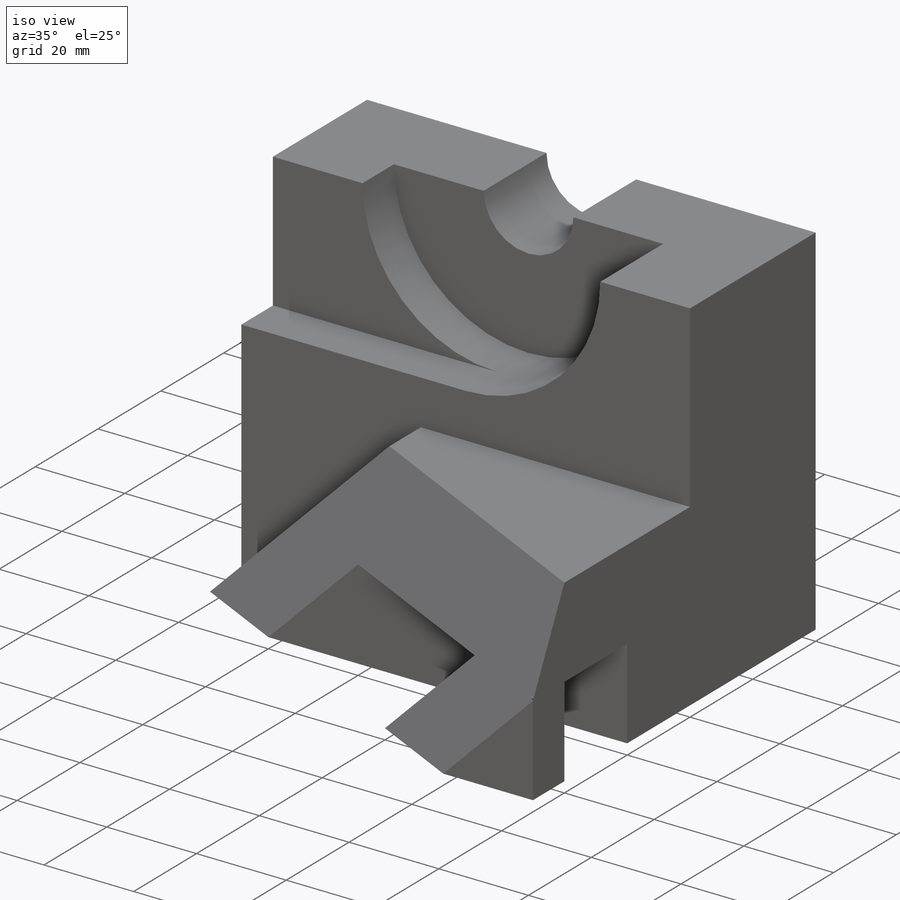
[diagram: iso view]
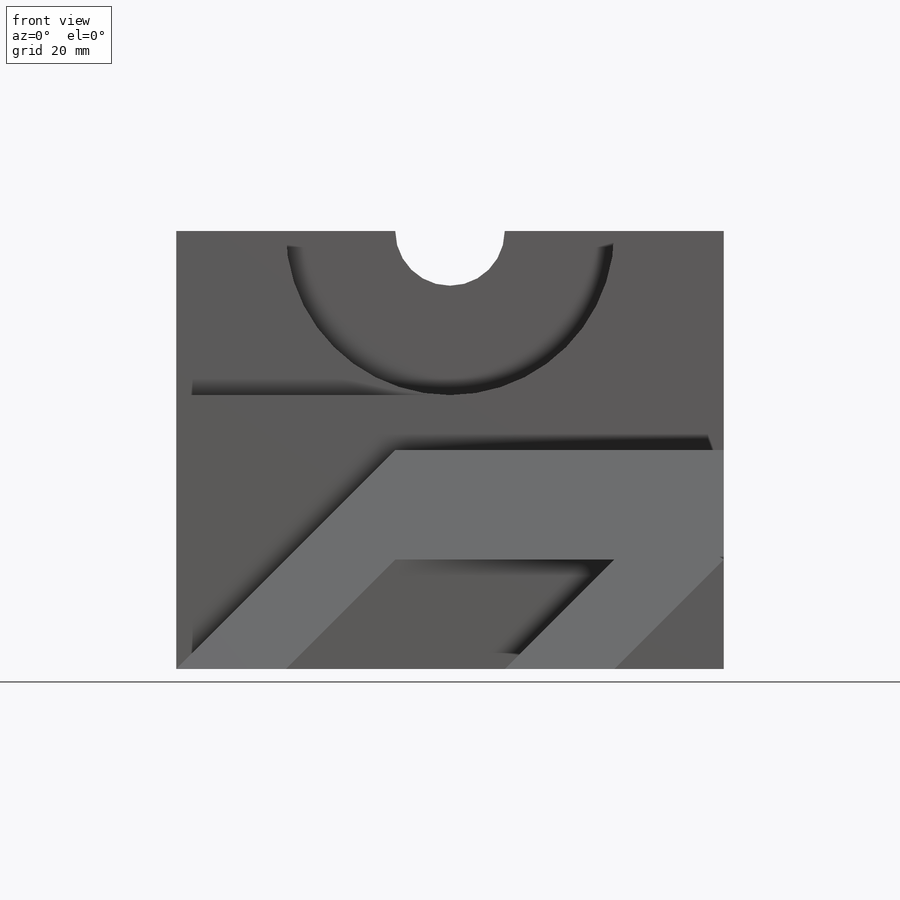
[diagram: front view]
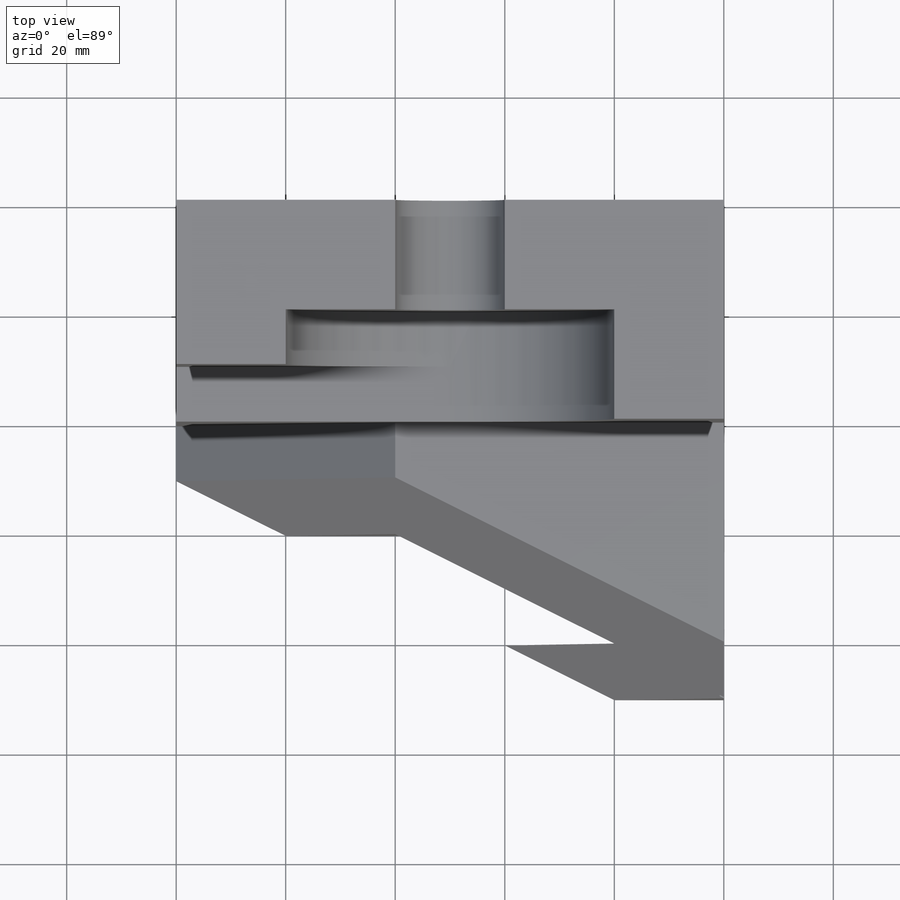
[diagram: top view]
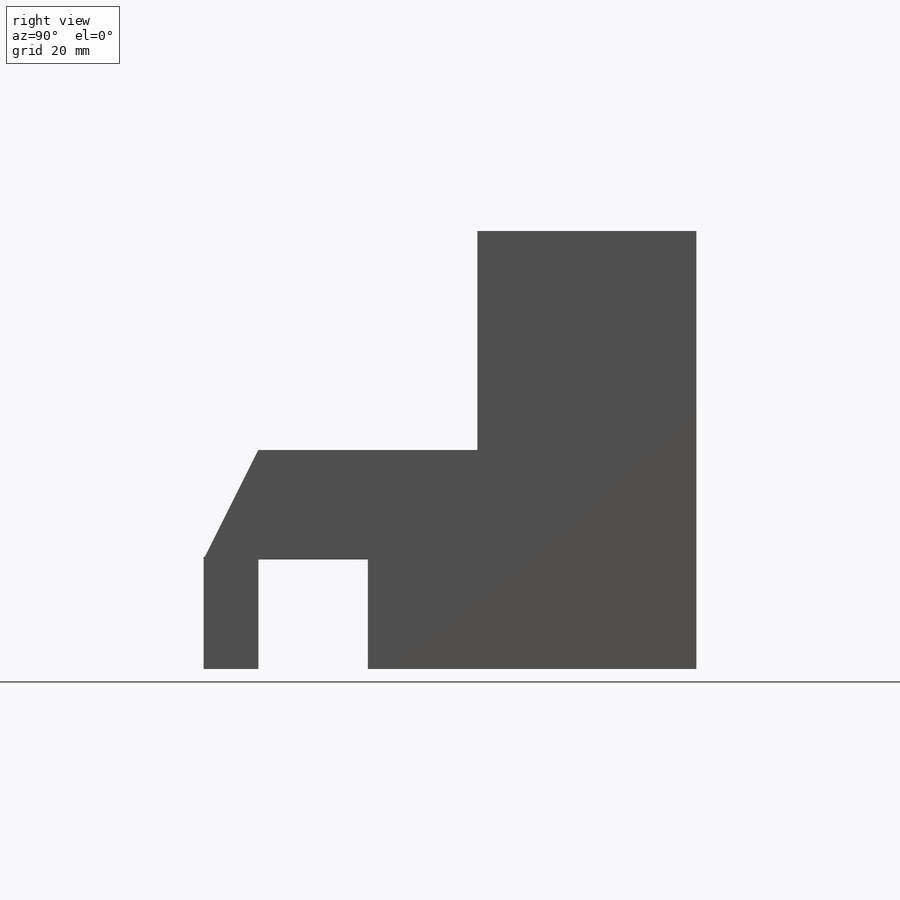
[diagram: right view]
SOLIDWORKS PART (.sldprt)
format: sldprt  version: not decoded by parser v0  size: 762,880 bytes
history: native  units: mm
features: sketch x44, cut_extrude x32, extrude x11, plane x11, material x1 (+13 scaffold rows collapsed)
feature tree (112):
  scaffold x13  (default folders/planes/origin — collapsed)
  material  "Material <not specified>"
  sketch  "Sketch1"  dims[D1=100.0mm D2=80.0mm]
  extrude  "Boss-Extrude1"  Depth=90mm
  sketch  "Sketch3"  dims[D1=20.0mm D2=10.0mm D3=20.0mm D4=20.0mm D5=40.0mm D6=20.0mm D7=20.0mm]
  cut_extrude  "Cut-Extrude1"  Depth=90mm
  sketch  "Sketch4"  dims[D1=20.0mm D2=10.0mm D3=20.0mm]
  cut_extrude  "Cut-Extrude2"  Depth=90mm
  sketch  "Sketch5"  dims[D1=10.0mm D2=40.0mm]
  cut_extrude  "Cut-Extrude3"  Depth=90mm
  plane  "Plane1"  Offset=20mm
  sketch  "Sketch6"  dims[D1=30.0mm D2=20.0mm D3=30.0mm]
  cut_extrude  "Cut-Extrude4"  Depth=90mm
  plane  "Plane2"  Offset=40mm
  sketch  "Sketch7"  dims[D1=40.0mm D2=0.0mm D3=0.0mm D4=100.0mm]
  cut_extrude  "Cut-Extrude5"  Depth=90mm
  sketch  "Sketch8"
  cut_extrude  "Cut-Extrude6"  Depth=10mm
  sketch  "Sketch9"  dims[D1=40.0mm]
  cut_extrude  "Cut-Extrude7"  Depth=94mm
  plane  "Plane3"  Offset=50mm
  sketch  "Sketch10"  dims[D1=100.0mm D2=0.0mm]
  cut_extrude  "Cut-Extrude8"  Depth=94mm
  sketch  "Sketch11"  dims[D1=30.0mm]
  extrude  "Boss-Extrude2"  Depth=40mm
  sketch  "Sketch15"  dims[D1=20.0mm D2=20.0mm D3=20.0mm D4=0.0mm D5=0.0mm D6=0.0mm]
  extrude  "Boss-Extrude4"  Depth=10mm
  plane  "Plane6"
  sketch  "Sketch16"  dims[c1.D1=20.0mm c1.D2=20.0mm c2.D1=20.0mm]
  extrude  "Boss-Extrude5"  Depth=10mm
  plane  "Plane7"
  sketch  "Sketch18"  dims[D1=~18.257419mm]
  extrude  "Boss-Extrude9"  Depth=10mm
  sketch  "Sketch19"  dims[D1=20.0mm D2=10.0mm]
  plane  "Plane9"  Offset=40mm
  sketch  "Sketch22"  dims[D1=~13.645756mm D2=~19.75156mm]
  cut_extrude  "Cut-Extrude12"  Depth=57mm
  plane  "Plane10"
  sketch  "Sketch23"
  extrude  "Boss-Extrude13"  Depth=20mm
  sketch  "Sketch24"
  extrude  "Boss-Extrude14"  Depth=20mm
  sketch  "Sketch25"  dims[D1=10.0mm]
  extrude  "Boss-Extrude16"  Depth=40mm
  plane  "Plane11"
  sketch  "Sketch26"  dims[D1=~18.718936mm]
  cut_extrude  "Cut-Extrude13"  Depth=40mm
  sketch  "Sketch27"
  cut_extrude  "Cut-Extrude14"  Depth=40mm
  sketch  "Sketch28"
  cut_extrude  "Cut-Extrude15"  Depth=40mm
  plane  "Plane12"
  sketch  "Sketch29"
  cut_extrude  "Cut-Extrude16"  Depth=40mm
  sketch  "Sketch30"  dims[D1=20.0mm D2=10.0mm D3=19.999mm]
  cut_extrude  "Cut-Extrude18"  Depth=125mm
  sketch  "Sketch31"
  extrude  "Boss-Extrude25"  Depth=0.5mm
  plane  "Plane15"
  sketch  "Sketch34"
  cut_extrude  "Cut-Extrude21"  Depth=0.5mm
  sketch  "Sketch35"
  cut_extrude  "Cut-Extrude22"  Depth=2.5mm
  sketch  "Sketch36"  dims[D1=~1.148729mm D2=~4.006965mm D3=~1.795461mm]
  extrude  "Boss-Extrude26"  Depth=2.5mm
  sketch  "Sketch37"
  cut_extrude  "Cut-Extrude23"  Depth=2.5mm
  sketch  "Sketch39"
  cut_extrude  "Cut-Extrude24"  Depth=2.5mm
  sketch  "Sketch40"
  cut_extrude  "Cut-Extrude25"  Depth=39.5mm
  plane  "Plane16"
  sketch  "Sketch41"
  extrude  "Boss-Extrude31"  Depth=80mm
  sketch  "Sketch45"
  cut_extrude  "Cut-Extrude27"  Depth=80mm
  sketch  "Sketch46"
  cut_extrude  "Cut-Extrude28"  Depth=80mm
  sketch  "Sketch47"
  cut_extrude  "Cut-Extrude29"  Depth=80mm
  sketch  "Sketch48"
  cut_extrude  "Cut-Extrude30"  Depth=80mm
  sketch  "Sketch49"  dims[D1=~14.903261mm D2=~19.402779mm D3=~30.48064mm]
  cut_extrude  "Cut-Extrude32"  Depth=80mm
  sketch  "Sketch51"  dims[c1.D1=300.0mm c1.D2=~25.130664mm c1.D3=~16.69037mm c1.D4=300.0mm c2.D4=~4.176877deg c3.D4=~255.770128mm]
  cut_extrude  "Cut-Extrude33"  Depth=80mm
  sketch  "Sketch52"
  cut_extrude  "Cut-Extrude34"  Depth=80mm
  sketch  "Sketch53"
  cut_extrude  "Cut-Extrude35"  Depth=80mm
  sketch  "Sketch54"
  cut_extrude  "Cut-Extrude36"  Depth=80mm
  sketch  "Sketch55"
  cut_extrude  "Cut-Extrude37"  Depth=80mm
  sketch  "Sketch56"  dims[D1=~16.617381mm D2=~14.27381mm]
  cut_extrude  "Cut-Extrude38"  Depth=80mm
  sketch  "Sketch57"  dims[c1.D1=~57.157925mm c1.D2=~100.195152mm c1.D3=~100.195152mm c1.D4=~100.195152mm c2.D4=90.0deg c3.D4=~13.717729mm]
  cut_extrude  "Cut-Extrude39"  Depth=80mm
  sketch  "Sketch58"  dims[D1=20.0mm D2=20.0mm]
  cut_extrude  "Cut-Extrude40"  Depth=80mm
decode coverage: 66 of 87 modeling features carry decoded parameters
note: ~ marks probable driven/reference dimensions
note: suppression state not decoded; provenance and decode notes live in map.json
